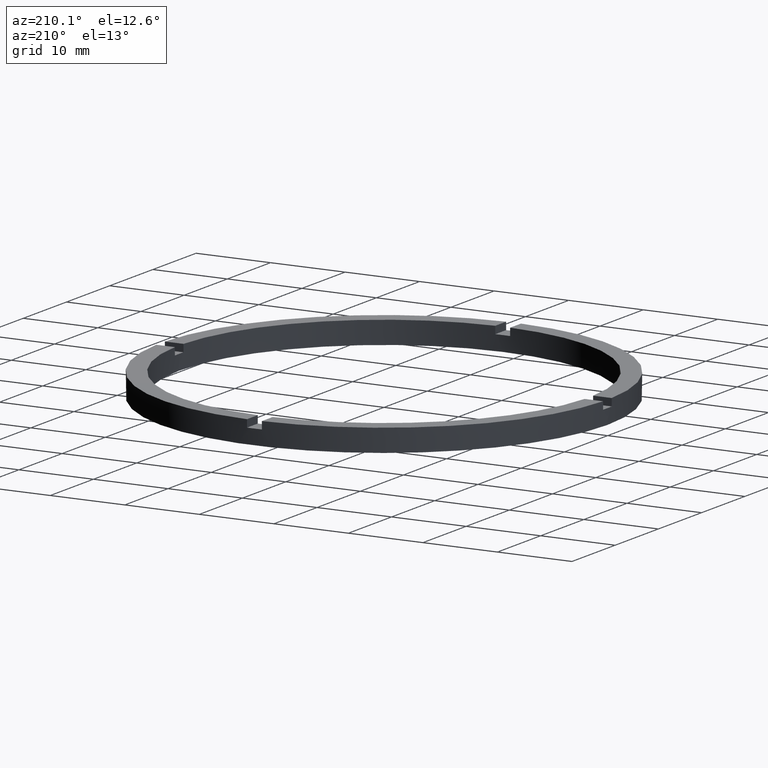
[diagram: clean part render]
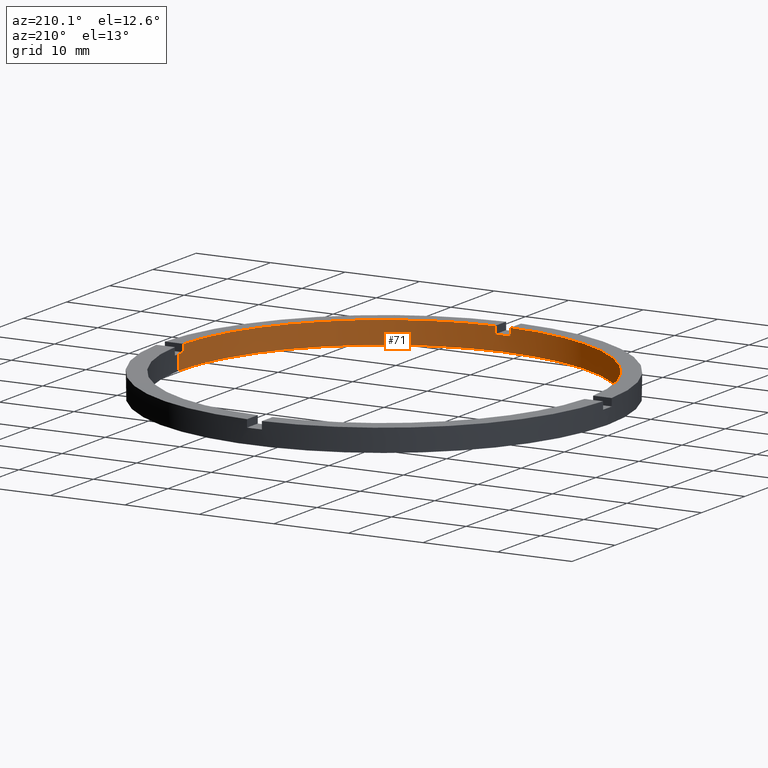
[diagram: same view with one face highlighted and labeled with its STEP entity id]
A machine part, auxiliary view. The second image highlights one B-rep face of the part: STEP entity #71.
In plain terms, the highlighted cylindrical surface (partial cylindrical patch) has radius 27.5 mm, axis along (-0, -0, -1).
Its self-contained STEP definition (entity closure, byte-faithful):
#6 = CIRCLE ( 'NONE', #525, 27.50000000000000000 ) ;
#10 = CIRCLE ( 'NONE', #600, 27.50000000000000000 ) ;
#13 = CARTESIAN_POINT ( 'NONE',  ( 27.50000000000000000, 3.367778697655221307E-15, 2.000000000000000000 ) ) ;
#16 = EDGE_CURVE ( 'NONE', #452, #435, #162, .T. ) ;
#28 = LINE ( 'NONE', #491, #43 ) ;
#38 = CARTESIAN_POINT ( 'NONE',  ( -27.50000000000000000, 0.000000000000000000, 0.000000000000000000 ) ) ;
#41 = CARTESIAN_POINT ( 'NONE',  ( 27.50000000000000000, 3.367778697655221307E-15, 3.000000000000000000 ) ) ;
#43 = VECTOR ( 'NONE', #327, 1000.000000000000000 ) ;
#57 = EDGE_CURVE ( 'NONE', #380, #435, #680, .T. ) ;
#62 = EDGE_CURVE ( 'NONE', #749, #157, #466, .T. ) ;
#65 = AXIS2_PLACEMENT_3D ( 'NONE', #236, #468, #96 ) ;
#67 = DIRECTION ( 'NONE',  ( 0.000000000000000000, -0.000000000000000000, 1.000000000000000000 ) ) ;
#71 = ADVANCED_FACE ( 'NONE', ( #218 ), #693, .F. ) ;
#81 = DIRECTION ( 'NONE',  ( -0.000000000000000000, -0.000000000000000000, -1.000000000000000000 ) ) ;
#86 = DIRECTION ( 'NONE',  ( 1.000000000000000000, 0.000000000000000000, 0.000000000000000000 ) ) ;
#90 = EDGE_CURVE ( 'NONE', #452, #398, #687, .T. ) ;
#91 = CARTESIAN_POINT ( 'NONE',  ( 0.000000000000000000, 0.000000000000000000, 3.000000000000000000 ) ) ;
#92 = VECTOR ( 'NONE', #520, 1000.000000000000000 ) ;
#96 = DIRECTION ( 'NONE',  ( 1.000000000000000000, 0.000000000000000000, 0.000000000000000000 ) ) ;
#108 = DIRECTION ( 'NONE',  ( 1.000000000000000000, 0.000000000000000000, 0.000000000000000000 ) ) ;
#117 = CARTESIAN_POINT ( 'NONE',  ( 0.000000000000000000, 0.000000000000000000, 2.000000000000000000 ) ) ;
#122 = EDGE_CURVE ( 'NONE', #489, #370, #678, .T. ) ;
#151 = VERTEX_POINT ( 'NONE', #570 ) ;
#157 = VERTEX_POINT ( 'NONE', #198 ) ;
#159 = ORIENTED_EDGE ( 'NONE', *, *, #90, .T. ) ;
#162 = LINE ( 'NONE', #399, #422 ) ;
#169 = ORIENTED_EDGE ( 'NONE', *, *, #718, .T. ) ;
#197 = VECTOR ( 'NONE', #326, 1000.000000000000000 ) ;
#198 = CARTESIAN_POINT ( 'NONE',  ( -1.000000000000159428, -27.48181216732258392, 3.000000000000000000 ) ) ;
#202 = EDGE_CURVE ( 'NONE', #370, #214, #205, .T. ) ;
#205 = CIRCLE ( 'NONE', #65, 27.50000000000000000 ) ;
#212 = VERTEX_POINT ( 'NONE', #782 ) ;
#214 = VERTEX_POINT ( 'NONE', #460 ) ;
#215 = VECTOR ( 'NONE', #490, 1000.000000000000000 ) ;
#218 = FACE_OUTER_BOUND ( 'NONE', #706, .T. ) ;
#236 = CARTESIAN_POINT ( 'NONE',  ( 0.000000000000000000, 0.000000000000000000, 0.000000000000000000 ) ) ;
#247 = CARTESIAN_POINT ( 'NONE',  ( -1.000000000000159428, -27.48181216732258392, 3.000000000000000000 ) ) ;
#256 = ORIENTED_EDGE ( 'NONE', *, *, #57, .T. ) ;
#263 = CIRCLE ( 'NONE', #424, 27.50000000000000000 ) ;
#277 = LINE ( 'NONE', #41, #523 ) ;
#281 = CARTESIAN_POINT ( 'NONE',  ( 0.9999999999998406830, -27.48181216732259458, 3.000000000000000000 ) ) ;
#284 = EDGE_CURVE ( 'NONE', #380, #651, #618, .T. ) ;
#297 = CARTESIAN_POINT ( 'NONE',  ( 0.9999999999998406830, -27.48181216732259458, 3.000000000000000000 ) ) ;
#311 = AXIS2_PLACEMENT_3D ( 'NONE', #696, #67, #690 ) ;
#322 = CARTESIAN_POINT ( 'NONE',  ( 0.000000000000000000, 0.000000000000000000, 3.000000000000000000 ) ) ;
#326 = DIRECTION ( 'NONE',  ( -0.000000000000000000, -0.000000000000000000, -1.000000000000000000 ) ) ;
#327 = DIRECTION ( 'NONE',  ( -0.000000000000000000, -0.000000000000000000, -1.000000000000000000 ) ) ;
#331 = CARTESIAN_POINT ( 'NONE',  ( 0.000000000000000000, 0.000000000000000000, 3.000000000000000000 ) ) ;
#353 = DIRECTION ( 'NONE',  ( 0.000000000000000000, 0.000000000000000000, 1.000000000000000000 ) ) ;
#370 = VERTEX_POINT ( 'NONE', #38 ) ;
#380 = VERTEX_POINT ( 'NONE', #281 ) ;
#381 = EDGE_CURVE ( 'NONE', #212, #151, #28, .T. ) ;
#397 = ORIENTED_EDGE ( 'NONE', *, *, #381, .F. ) ;
#398 = VERTEX_POINT ( 'NONE', #13 ) ;
#399 = CARTESIAN_POINT ( 'NONE',  ( 27.48181216732258392, -1.000000000000156319, 3.000000000000000000 ) ) ;
#405 = DIRECTION ( 'NONE',  ( 1.000000000000000000, 0.000000000000000000, 0.000000000000000000 ) ) ;
#417 = ORIENTED_EDGE ( 'NONE', *, *, #122, .F. ) ;
#422 = VECTOR ( 'NONE', #353, 1000.000000000000000 ) ;
#424 = AXIS2_PLACEMENT_3D ( 'NONE', #331, #529, #86 ) ;
#425 = AXIS2_PLACEMENT_3D ( 'NONE', #322, #641, #480 ) ;
#427 = CARTESIAN_POINT ( 'NONE',  ( -27.50000000000000000, 0.000000000000000000, 2.000000000000000000 ) ) ;
#435 = VERTEX_POINT ( 'NONE', #597 ) ;
#452 = VERTEX_POINT ( 'NONE', #731 ) ;
#460 = CARTESIAN_POINT ( 'NONE',  ( 27.50000000000000000, 3.367778697655221307E-15, 0.000000000000000000 ) ) ;
#466 = LINE ( 'NONE', #247, #215 ) ;
#468 = DIRECTION ( 'NONE',  ( 0.000000000000000000, 0.000000000000000000, 1.000000000000000000 ) ) ;
#472 = AXIS2_PLACEMENT_3D ( 'NONE', #91, #783, #405 ) ;
#480 = DIRECTION ( 'NONE',  ( -1.000000000000000000, 0.000000000000000000, 0.000000000000000000 ) ) ;
#484 = ORIENTED_EDGE ( 'NONE', *, *, #748, .T. ) ;
#487 = DIRECTION ( 'NONE',  ( 0.000000000000000000, 0.000000000000000000, 1.000000000000000000 ) ) ;
#489 = VERTEX_POINT ( 'NONE', #427 ) ;
#490 = DIRECTION ( 'NONE',  ( 0.000000000000000000, 0.000000000000000000, 1.000000000000000000 ) ) ;
#491 = CARTESIAN_POINT ( 'NONE',  ( -27.48181216732259102, -1.000000000000027756, 3.000000000000000000 ) ) ;
#497 = ORIENTED_EDGE ( 'NONE', *, *, #284, .F. ) ;
#519 = CARTESIAN_POINT ( 'NONE',  ( -1.000000000000159428, -27.48181216732258392, 2.000000000000000000 ) ) ;
#520 = DIRECTION ( 'NONE',  ( -0.000000000000000000, -0.000000000000000000, -1.000000000000000000 ) ) ;
#523 = VECTOR ( 'NONE', #81, 1000.000000000000000 ) ;
#525 = AXIS2_PLACEMENT_3D ( 'NONE', #117, #487, #108 ) ;
#529 = DIRECTION ( 'NONE',  ( 0.000000000000000000, 0.000000000000000000, 1.000000000000000000 ) ) ;
#570 = CARTESIAN_POINT ( 'NONE',  ( -27.48181216732259102, -1.000000000000027756, 2.000000000000000000 ) ) ;
#597 = CARTESIAN_POINT ( 'NONE',  ( 27.48181216732258392, -1.000000000000156319, 3.000000000000000000 ) ) ;
#599 = DIRECTION ( 'NONE',  ( -0.000000000000000000, 0.000000000000000000, 1.000000000000000000 ) ) ;
#600 = AXIS2_PLACEMENT_3D ( 'NONE', #657, #599, #741 ) ;
#605 = EDGE_CURVE ( 'NONE', #489, #151, #6, .T. ) ;
#618 = LINE ( 'NONE', #297, #92 ) ;
#640 = ORIENTED_EDGE ( 'NONE', *, *, #62, .F. ) ;
#641 = DIRECTION ( 'NONE',  ( -0.000000000000000000, -0.000000000000000000, -1.000000000000000000 ) ) ;
#644 = ORIENTED_EDGE ( 'NONE', *, *, #202, .F. ) ;
#651 = VERTEX_POINT ( 'NONE', #734 ) ;
#657 = CARTESIAN_POINT ( 'NONE',  ( 0.000000000000000000, 0.000000000000000000, 2.000000000000000000 ) ) ;
#671 = ORIENTED_EDGE ( 'NONE', *, *, #762, .T. ) ;
#678 = LINE ( 'NONE', #723, #197 ) ;
#679 = ORIENTED_EDGE ( 'NONE', *, *, #16, .F. ) ;
#680 = CIRCLE ( 'NONE', #472, 27.50000000000000000 ) ;
#687 = CIRCLE ( 'NONE', #311, 27.50000000000000000 ) ;
#690 = DIRECTION ( 'NONE',  ( 1.000000000000000000, 0.000000000000000000, 0.000000000000000000 ) ) ;
#693 = CYLINDRICAL_SURFACE ( 'NONE', #425, 27.50000000000000000 ) ;
#696 = CARTESIAN_POINT ( 'NONE',  ( 0.000000000000000000, 0.000000000000000000, 2.000000000000000000 ) ) ;
#706 = EDGE_LOOP ( 'NONE', ( #159, #671, #644, #417, #747, #397, #484, #640, #169, #497, #256, #679 ) ) ;
#718 = EDGE_CURVE ( 'NONE', #749, #651, #10, .T. ) ;
#723 = CARTESIAN_POINT ( 'NONE',  ( -27.50000000000000000, 0.000000000000000000, 3.000000000000000000 ) ) ;
#731 = CARTESIAN_POINT ( 'NONE',  ( 27.48181216732258392, -1.000000000000156319, 2.000000000000000000 ) ) ;
#734 = CARTESIAN_POINT ( 'NONE',  ( 0.9999999999998406830, -27.48181216732259458, 2.000000000000000000 ) ) ;
#741 = DIRECTION ( 'NONE',  ( 1.000000000000000000, 0.000000000000000000, 0.000000000000000000 ) ) ;
#747 = ORIENTED_EDGE ( 'NONE', *, *, #605, .T. ) ;
#748 = EDGE_CURVE ( 'NONE', #212, #157, #263, .T. ) ;
#749 = VERTEX_POINT ( 'NONE', #519 ) ;
#762 = EDGE_CURVE ( 'NONE', #398, #214, #277, .T. ) ;
#782 = CARTESIAN_POINT ( 'NONE',  ( -27.48181216732259102, -1.000000000000027756, 3.000000000000000000 ) ) ;
#783 = DIRECTION ( 'NONE',  ( 0.000000000000000000, 0.000000000000000000, 1.000000000000000000 ) ) ;